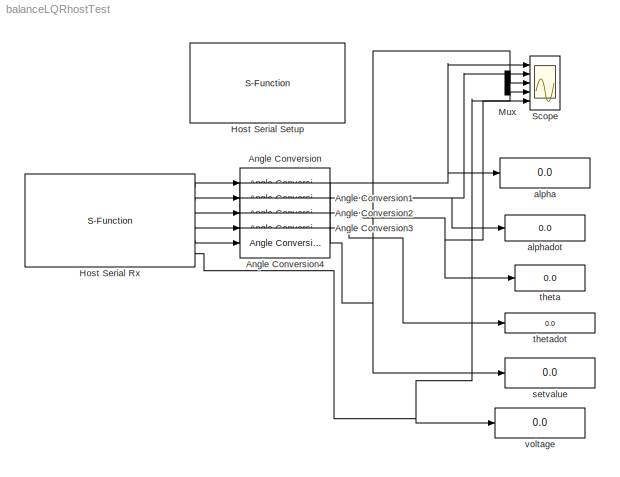
MODEL balanceLQRhostTest
KIND model
CONFIG StopFcn = subplot(3,1,1);\nplot(Data.time,Data.signals(1,1).values,'-r','LineWidth',1.5)\nlegend('Angle');\ngrid;\nylabel('alpha [deg]');\ntitle('Pendulum');\nsubplot(3,1,2);\nplot(Data.time,Data.signals(1,4).values,'-r','LineWidth',1.5)\nhold on;\nplot(Data.time,Data.signals(1,3).values,'-b','LineWidth',1.5)\ngrid;\nlegend('theta','setvalue');\nylabel('Arm [deg]');\nsubplot(3,1,3);\nplot(Data.time,Data.sig...<+85ch>
BLOCK [Reference] Angle Conversion  REF=aerolibconvert2/Angle Conversion
  IU = rad
  OU = deg
  Ports = [1, 1]
  SID = 21
  SourceBlock = aerolibconvert2/Angle Conversion
  SourceType = Angle Conversion
BLOCK [Reference] Angle Conversion1  REF=aerolibconvert2/Angle Conversion
  IU = rad
  OU = deg
  Ports = [1, 1]
  SID = 22
  SourceBlock = aerolibconvert2/Angle Conversion
  SourceType = Angle Conversion
BLOCK [Reference] Angle Conversion2  REF=aerolibconvert2/Angle Conversion
  IU = rad
  OU = deg
  Ports = [1, 1]
  SID = 23
  SourceBlock = aerolibconvert2/Angle Conversion
  SourceType = Angle Conversion
BLOCK [Reference] Angle Conversion3  REF=aerolibconvert2/Angle Conversion
  IU = rad
  OU = deg
  Ports = [1, 1]
  SID = 24
  SourceBlock = aerolibconvert2/Angle Conversion
  SourceType = Angle Conversion
BLOCK [Reference] Angle Conversion4  REF=aerolibconvert2/Angle Conversion
  IU = rad
  OU = deg
  Ports = [1, 1]
  SID = 25
  SourceBlock = aerolibconvert2/Angle Conversion
  SourceType = Angle Conversion
BLOCK [S-Function] Host Serial Rx
  EnableBusSupport = off
  FunctionName = amg_usbconverter_n_serial
  Parameters = configuration,port,transfer,baudrate,stopbit,inputtype,outputtype,binheaderarray,binterminatorarray,asciiheader,asciiterminator,bindatalength,packetmode,timeout,sampletime,sampletimestr,blockid
  Ports = [0, 6]
  Priority = 1
  SID = 2
BLOCK [S-Function] Host Serial Setup
  EnableBusSupport = off
  FunctionName = amg_usbconverter_n_serial
  Parameters = configuration,port,transfer,baudrate,stopbit,inputtype,outputtype,binheaderarray,binterminatorarray,asciiheader,asciiterminator,bindatalength,packetmode,timeout,sampletime,sampletimestr,blockid
  Ports = []
  Priority = 1
  SID = 1
BLOCK [Mux] Mux
  DisplayOption = bar
  Inputs = 2
  Ports = [2, 1]
  SID = 20
BLOCK [Scope] Scope
  DataFormat = StructureWithTime
  Floating = off
  LimitDataPoints = off
  NumInputPorts = 5
  Ports = [5]
  SID = 4
  SampleTime = 0
  SaveName = Data
  SaveToWorkspace = on
  ShowLegends = off
  YMax = 0.0155~0.2~1~0.2~5
  YMin = 0.01225~-0.2~-0.2~-0.2~-5
BLOCK [Display] alpha
  Decimation = 1
  Lockdown = off
  Ports = [1]
  SID = 3
BLOCK [Display] alphadot
  Decimation = 1
  Lockdown = off
  Ports = [1]
  SID = 5
BLOCK [Display] setvalue
  Decimation = 1
  Lockdown = off
  Ports = [1]
  SID = 8
BLOCK [Display] theta
  Decimation = 1
  Lockdown = off
  Ports = [1]
  SID = 6
BLOCK [Display] thetadot
  Decimation = 1
  Lockdown = off
  Ports = [1]
  SID = 7
BLOCK [Display] voltage
  Decimation = 1
  Lockdown = off
  Ports = [1]
  SID = 9
NET Angle Conversion1:1 -> Scope:2, alphadot:1
NET Angle Conversion2:1 -> Scope:4, theta:1
LINE Angle Conversion3:1 -> thetadot:1
NET Angle Conversion4:1 -> Scope:3, setvalue:1
NET Angle Conversion:1 -> Scope:1, alpha:1
LINE Host Serial Rx:1 -> Angle Conversion:1
LINE Host Serial Rx:2 -> Angle Conversion1:1
LINE Host Serial Rx:3 -> Angle Conversion2:1
LINE Host Serial Rx:4 -> Angle Conversion3:1
LINE Host Serial Rx:5 -> Angle Conversion4:1
NET Host Serial Rx:6 -> Scope:5, voltage:1
note: NET lines group one-source signal fan-out (src -> all destinations, sorted); 1:1 wires keep LINE
